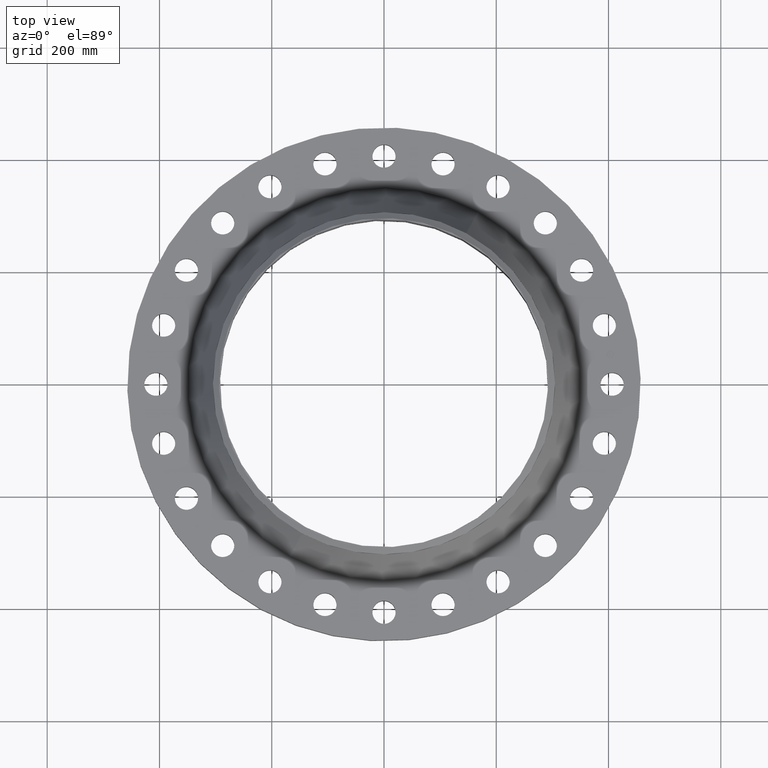
[diagram: clean part render]
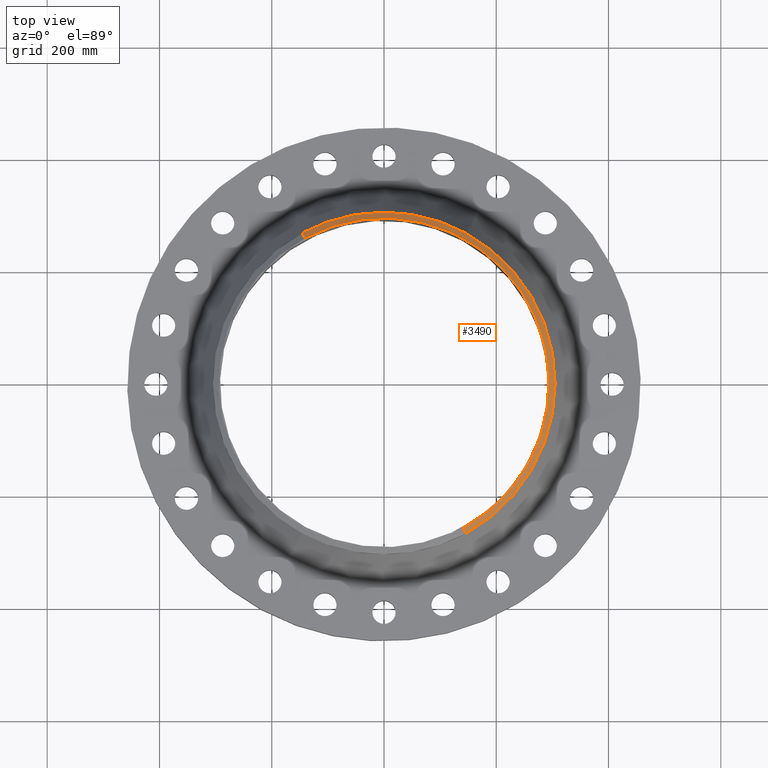
[diagram: same view with one face highlighted and labeled with its STEP entity id]
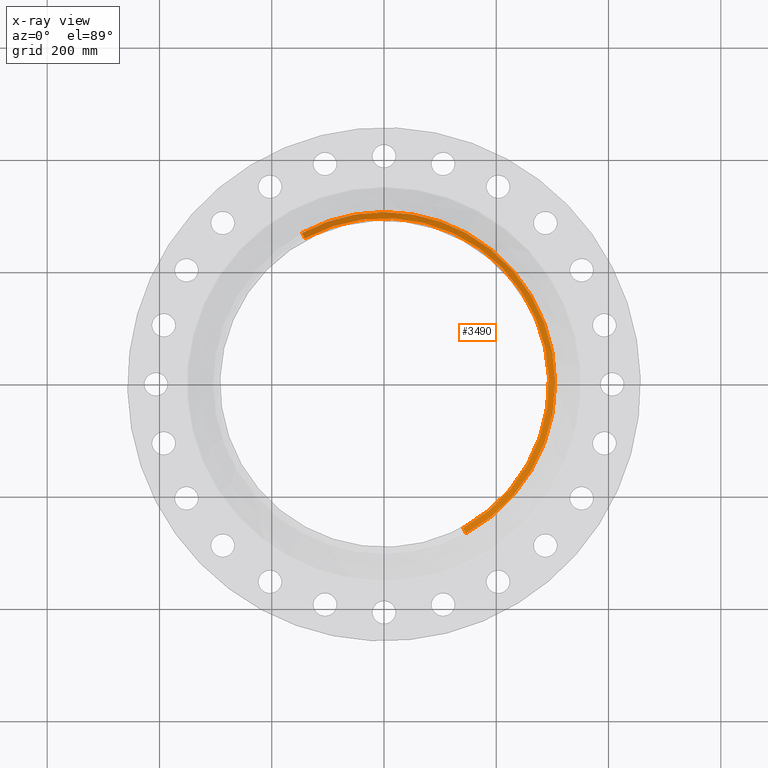
[diagram: x-ray of the same camera — body ghosted, the highlighted face saturated]
A machine part, top view. The second image highlights one B-rep face of the part: STEP entity #3490.
The next image is the same camera in x-ray: the body ghosted, the highlighted face saturated — about 0% of this face is hidden behind the body in this view.
In plain terms, the highlighted conical surface has half-angle 52.5 deg.
Its self-contained STEP definition (entity closure, byte-faithful):
#2805=AXIS2_PLACEMENT_3D('Circle Axis2P3D',#2803,#2804,$) ;
#2830=AXIS2_PLACEMENT_3D('Circle Axis2P3D',#2828,#2829,$) ;
#3420=AXIS2_PLACEMENT_3D('Circle Axis2P3D',#3418,#3419,$) ;
#3481=AXIS2_PLACEMENT_3D('Cone Axis2P3D',#3478,#3479,#3480) ;
#2786=CARTESIAN_POINT('Vertex',(5.75310646325,10.5309907427,6.23675595392)) ;
#2800=CARTESIAN_POINT('Vertex',(-5.75310646326,10.5309907427,6.23675595392)) ;
#2803=CARTESIAN_POINT('Axis2P3D Location',(0.,0.,6.23675595392)) ;
#2828=CARTESIAN_POINT('Axis2P3D Location',(0.,0.,6.23675595392)) ;
#2832=CARTESIAN_POINT('Vertex',(5.75310646326,-10.5309907427,6.23675595392)) ;
#3418=CARTESIAN_POINT('Axis2P3D Location',(-4.36656485248E-011,-1.65226362775E-011,6.56000000003)) ;
#3422=CARTESIAN_POINT('Vertex',(5.55114373638,-10.1613004509,6.56000000002)) ;
#3424=CARTESIAN_POINT('Vertex',(-5.55114373637,10.1613004509,6.56000000003)) ;
#3453=CARTESIAN_POINT('Line Origine',(5.65212509982,-10.3461455968,6.39837797697)) ;
#3458=CARTESIAN_POINT('Line Origine',(-5.65212509982,10.3461455968,6.39837797697)) ;
#3478=CARTESIAN_POINT('Axis2P3D Location',(0.,0.,6.56000000003)) ;
#2804=DIRECTION('Axis2P3D Direction',(-0.,0.,-0.0393700787402)) ;
#2829=DIRECTION('Axis2P3D Direction',(-0.,0.,-0.0393700787402)) ;
#3419=DIRECTION('Axis2P3D Direction',(0.,0.,-0.0393700787402)) ;
#3454=DIRECTION('Vector Direction',(0.014974561121,-0.02741075027,-0.023966985394)) ;
#3459=DIRECTION('Vector Direction',(-0.014974561121,0.02741075027,-0.023966985394)) ;
#3479=DIRECTION('Axis2P3D Direction',(-0.,-0.,-0.0393700787402)) ;
#3480=DIRECTION('Axis2P3D XDirection',(-0.0188750212049,0.0345504945626,0.)) ;
#3455=VECTOR('Line Direction',#3454,0.0393700787402) ;
#3460=VECTOR('Line Direction',#3459,0.0393700787402) ;
#3484=ORIENTED_EDGE('',*,*,#3462,.F.) ;
#3485=ORIENTED_EDGE('',*,*,#3426,.F.) ;
#3486=ORIENTED_EDGE('',*,*,#3457,.T.) ;
#3487=ORIENTED_EDGE('',*,*,#2834,.T.) ;
#3488=ORIENTED_EDGE('',*,*,#2807,.F.) ;
#3490=ADVANCED_FACE('PartBody',(#3489),#3482,.T.) ;
#2806=CIRCLE('generated circle',#2805,12.) ;
#2831=CIRCLE('generated circle',#2830,12.) ;
#3421=CIRCLE('generated circle',#3420,11.5787401575) ;
#3482=CONICAL_SURFACE('Cone',#3481,11.5787401575,0.916297857297) ;
#2807=EDGE_CURVE('',#2801,#2787,#2806,.T.) ;
#2834=EDGE_CURVE('',#2833,#2787,#2831,.F.) ;
#3426=EDGE_CURVE('',#3423,#3425,#3421,.F.) ;
#3457=EDGE_CURVE('',#3423,#2833,#3456,.T.) ;
#3462=EDGE_CURVE('',#3425,#2801,#3461,.T.) ;
#3483=EDGE_LOOP('',(#3484,#3485,#3486,#3487,#3488)) ;
#3489=FACE_OUTER_BOUND('',#3483,.T.) ;
#3456=LINE('Line',#3453,#3455) ;
#3461=LINE('Line',#3458,#3460) ;
#2787=VERTEX_POINT('',#2786) ;
#2801=VERTEX_POINT('',#2800) ;
#2833=VERTEX_POINT('',#2832) ;
#3423=VERTEX_POINT('',#3422) ;
#3425=VERTEX_POINT('',#3424) ;